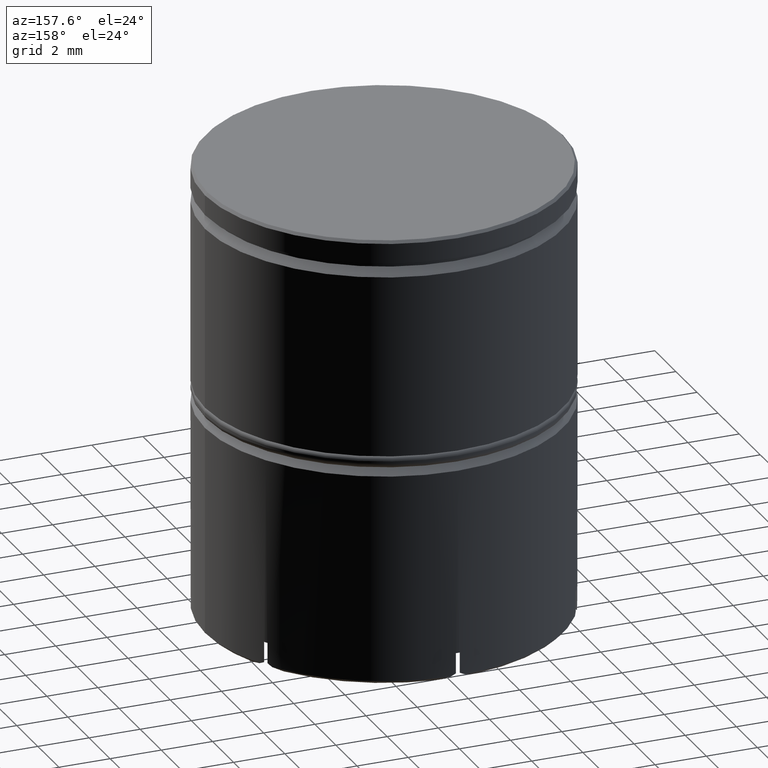
[diagram: clean part render]
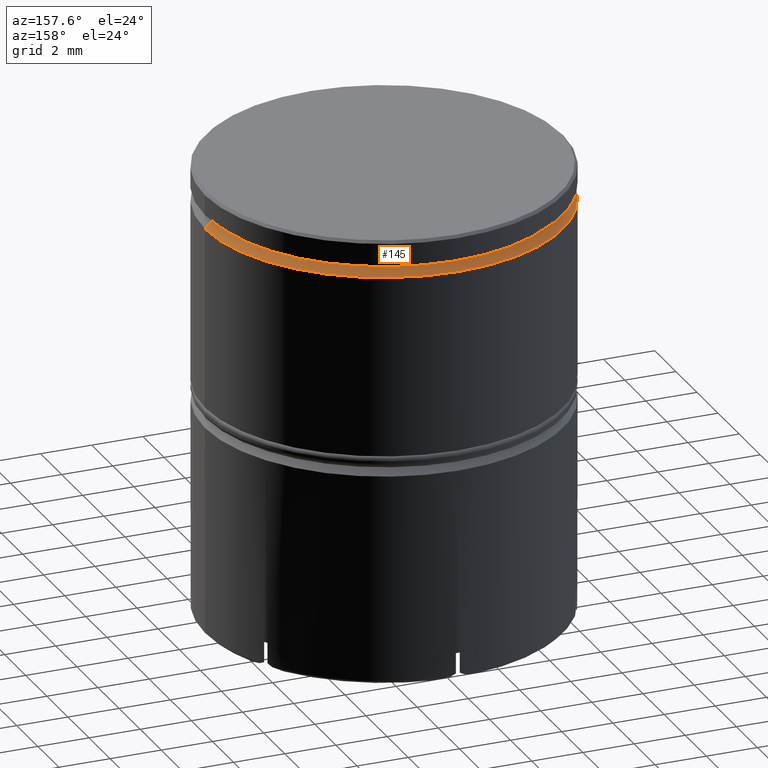
[diagram: same view with one face highlighted and labeled with its STEP entity id]
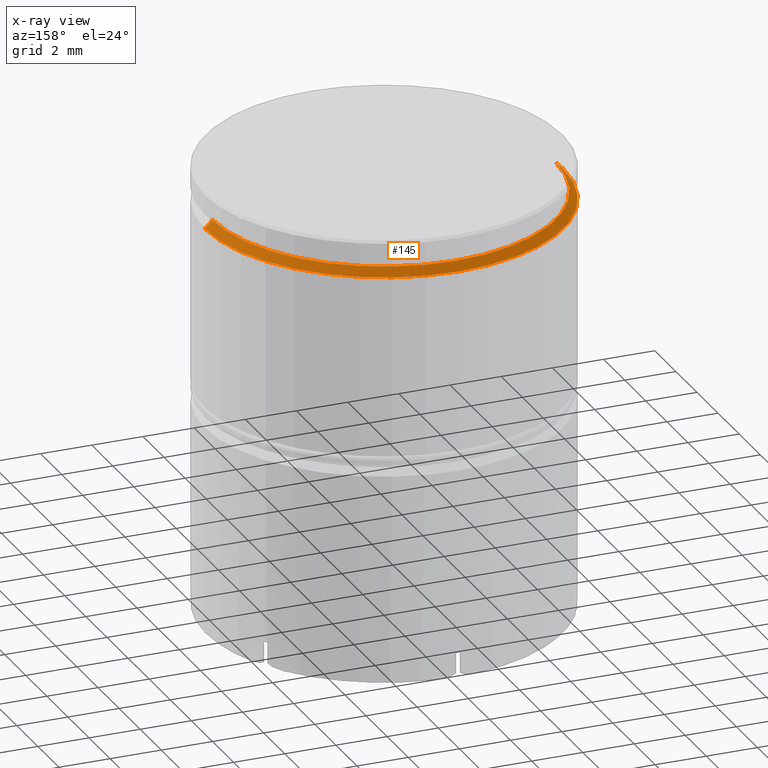
[diagram: x-ray of the same camera — body ghosted, the highlighted face saturated]
A machine part, auxiliary view. The second image highlights one B-rep face of the part: STEP entity #145.
The next image is the same camera in x-ray: the body ghosted, the highlighted face saturated — about 1% of this face is hidden behind the body in this view.
In plain terms, the highlighted conical surface has half-angle 45 deg.
Its self-contained STEP definition (entity closure, byte-faithful):
#14 = CARTESIAN_POINT ( 'NONE',  ( 6.699999999999997513, 8.205133554287261632E-16, -1.125000000000000222 ) ) ;
#51 = VECTOR ( 'NONE', #441, 1000.000000000000114 ) ;
#145 = ADVANCED_FACE ( 'NONE', ( #1526 ), #638, .T. ) ;
#181 = DIRECTION ( 'NONE',  ( 0.000000000000000000, 0.000000000000000000, -1.000000000000000000 ) ) ;
#182 = VERTEX_POINT ( 'NONE', #422 ) ;
#308 = EDGE_CURVE ( 'NONE', #329, #313, #345, .T. ) ;
#310 = CARTESIAN_POINT ( 'NONE',  ( 7.000000000000000888, 0.000000000000000000, -1.425000000000005151 ) ) ;
#313 = VERTEX_POINT ( 'NONE', #310 ) ;
#314 = EDGE_CURVE ( 'NONE', #1183, #329, #1455, .T. ) ;
#316 = CARTESIAN_POINT ( 'NONE',  ( 0.000000000000000000, 0.000000000000000000, -1.425000000000005151 ) ) ;
#329 = VERTEX_POINT ( 'NONE', #569 ) ;
#345 = CIRCLE ( 'NONE', #770, 7.000000000000000888 ) ;
#406 = AXIS2_PLACEMENT_3D ( 'NONE', #1518, #765, #1018 ) ;
#422 = CARTESIAN_POINT ( 'NONE',  ( 6.700000000000001066, 0.000000000000000000, -1.125000000000000222 ) ) ;
#441 = DIRECTION ( 'NONE',  ( -0.7071067811865455743, 0.000000000000000000, -0.7071067811865495711 ) ) ;
#453 = AXIS2_PLACEMENT_3D ( 'NONE', #701, #1326, #720 ) ;
#569 = CARTESIAN_POINT ( 'NONE',  ( -7.000000000000000888, 8.572527594031474176E-16, -1.425000000000005151 ) ) ;
#600 = ORIENTED_EDGE ( 'NONE', *, *, #308, .F. ) ;
#638 = CONICAL_SURFACE ( 'NONE', #406, 6.699999999999997513, 0.7853981633974453924 ) ;
#701 = CARTESIAN_POINT ( 'NONE',  ( 0.000000000000000000, 0.000000000000000000, -1.125000000000000222 ) ) ;
#702 = ORIENTED_EDGE ( 'NONE', *, *, #1154, .T. ) ;
#720 = DIRECTION ( 'NONE',  ( 1.000000000000000000, 0.000000000000000000, 0.000000000000000000 ) ) ;
#737 = EDGE_CURVE ( 'NONE', #182, #1183, #743, .T. ) ;
#743 = CIRCLE ( 'NONE', #453, 6.700000000000001066 ) ;
#746 = VECTOR ( 'NONE', #886, 1000.000000000000114 ) ;
#765 = DIRECTION ( 'NONE',  ( 0.000000000000000000, 0.000000000000000000, -1.000000000000000000 ) ) ;
#770 = AXIS2_PLACEMENT_3D ( 'NONE', #316, #181, #1321 ) ;
#886 = DIRECTION ( 'NONE',  ( 0.7071067811865455743, 8.659560562354906974E-17, -0.7071067811865495711 ) ) ;
#1018 = DIRECTION ( 'NONE',  ( -1.000000000000000000, 0.000000000000000000, 0.000000000000000000 ) ) ;
#1040 = EDGE_LOOP ( 'NONE', ( #1295, #702, #600, #1146 ) ) ;
#1062 = CARTESIAN_POINT ( 'NONE',  ( -6.699999999999997513, 0.000000000000000000, -1.125000000000000222 ) ) ;
#1146 = ORIENTED_EDGE ( 'NONE', *, *, #314, .F. ) ;
#1154 = EDGE_CURVE ( 'NONE', #182, #313, #1255, .T. ) ;
#1183 = VERTEX_POINT ( 'NONE', #1379 ) ;
#1255 = LINE ( 'NONE', #14, #746 ) ;
#1295 = ORIENTED_EDGE ( 'NONE', *, *, #737, .F. ) ;
#1321 = DIRECTION ( 'NONE',  ( 1.000000000000000000, 0.000000000000000000, 0.000000000000000000 ) ) ;
#1326 = DIRECTION ( 'NONE',  ( -0.000000000000000000, -0.000000000000000000, 1.000000000000000000 ) ) ;
#1379 = CARTESIAN_POINT ( 'NONE',  ( -6.700000000000001066, 8.205133554287267548E-16, -1.125000000000000222 ) ) ;
#1455 = LINE ( 'NONE', #1062, #51 ) ;
#1518 = CARTESIAN_POINT ( 'NONE',  ( 0.000000000000000000, 0.000000000000000000, -1.125000000000000222 ) ) ;
#1526 = FACE_OUTER_BOUND ( 'NONE', #1040, .T. ) ;